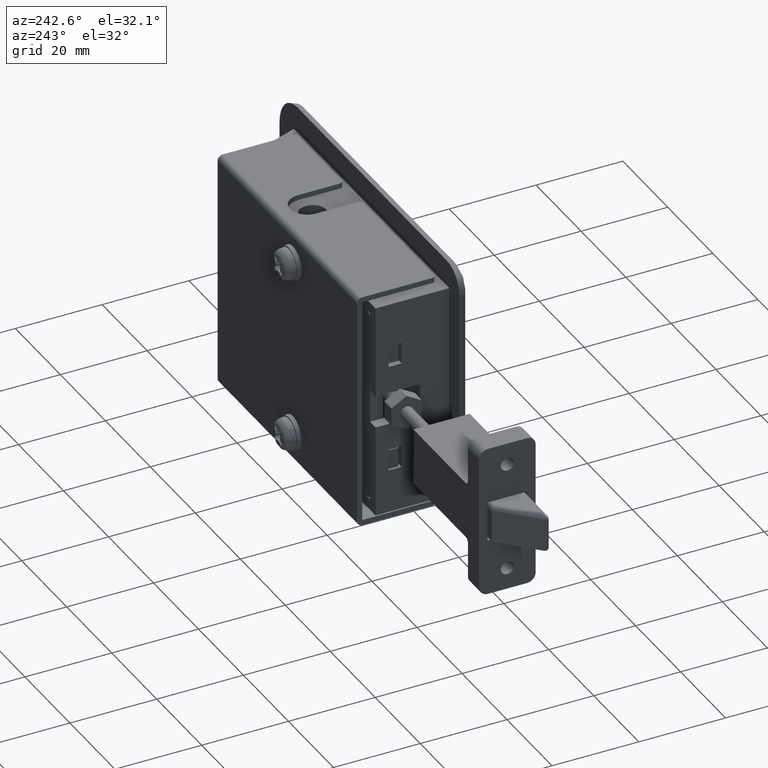
[diagram: clean part render]
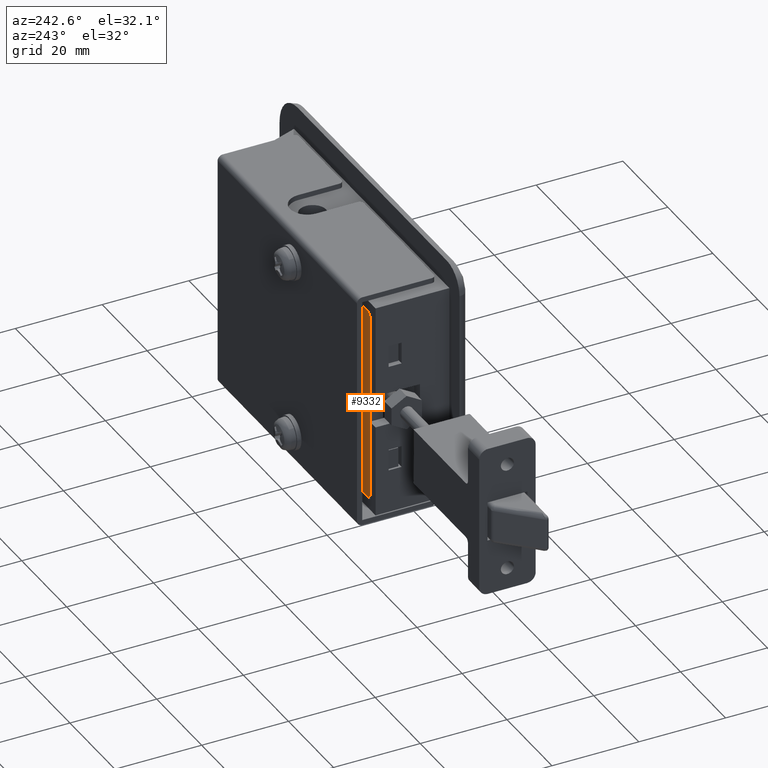
[diagram: same view with one face highlighted and labeled with its STEP entity id]
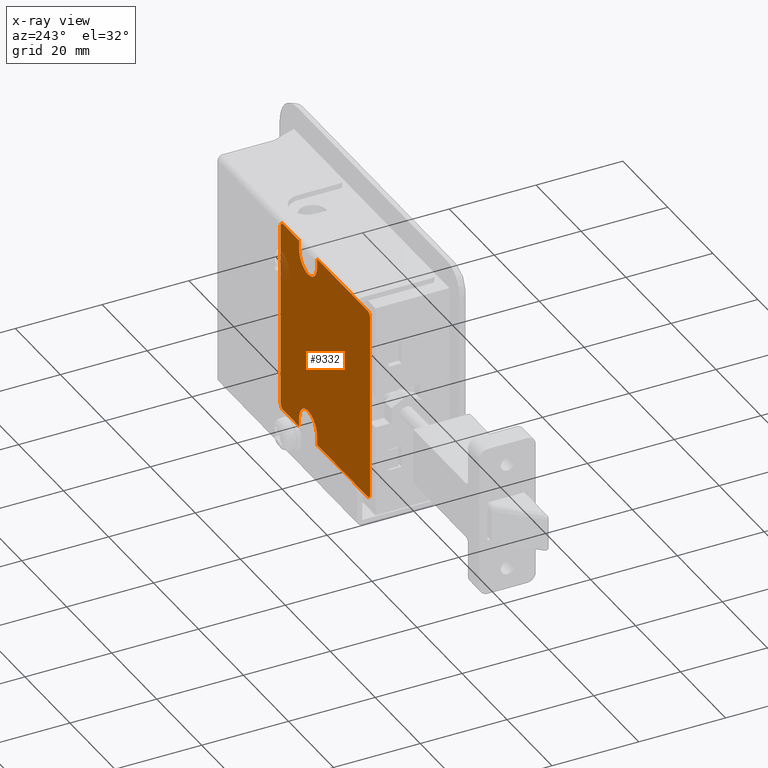
[diagram: x-ray of the same camera — body ghosted, the highlighted face saturated]
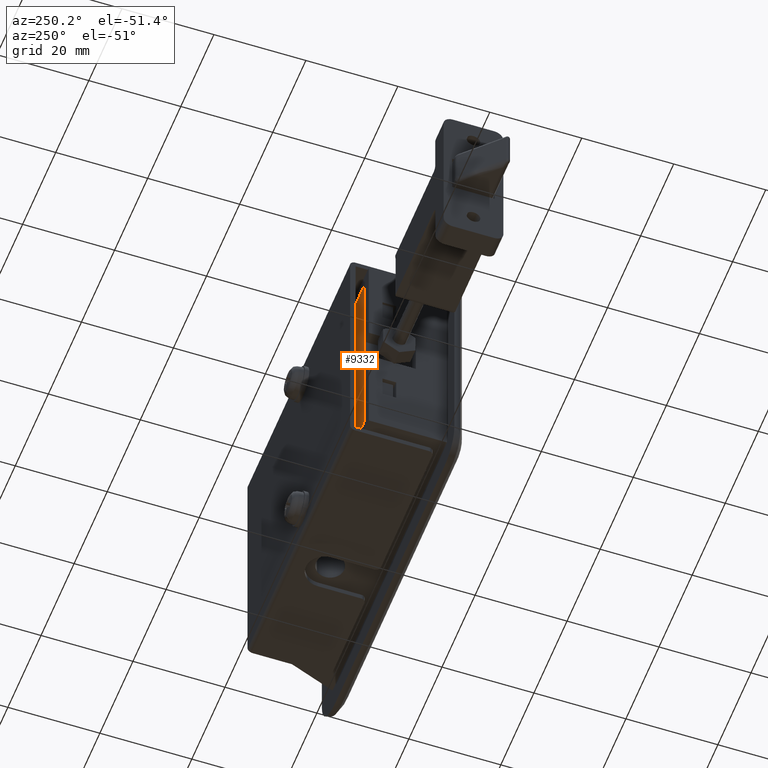
[diagram: same view with one face highlighted and labeled with its STEP entity id]
A machine part, auxiliary view. The second image highlights one B-rep face of the part: STEP entity #9332.
The next image is the same camera in x-ray: the body ghosted, the highlighted face saturated — about 1% of this face is hidden behind the body in this view.
A second angle (auxiliary view) of the same face is appended — the face is thin or edge-on in the first view.
In plain terms, the highlighted face is a freeform B-spline surface patch.
Its self-contained STEP definition (entity closure, byte-faithful):
#8280=CARTESIAN_POINT('',(16.500000000000000,13.750000000000000,20.500000000000000));
#8281=VERTEX_POINT('',#8280);
#8282=CARTESIAN_POINT('',(16.500000000000000,13.750000000000000,22.449999999999999));
#8283=VERTEX_POINT('',#8282);
#8284=CARTESIAN_POINT('',(16.500000000000000,13.750000000000000,20.500000000000000));
#8285=CARTESIAN_POINT('',(16.500000000000000,13.750000000000000,22.449999999999999));
#8286=QUASI_UNIFORM_CURVE('',1,(#8284,#8285),.UNSPECIFIED.,.F.,.U.);
#8287=EDGE_CURVE('',#8281,#8283,#8286,.T.);
#8329=CARTESIAN_POINT('',(24.500000000000000,13.750000000000000,20.500000000000000));
#8330=VERTEX_POINT('',#8329);
#8331=CARTESIAN_POINT('',(20.500000236385361,13.750000000000000,16.500000000000011));
#8332=VERTEX_POINT('',#8331);
#8333=CARTESIAN_POINT('',(24.500000000000000,13.750000000000000,20.500000000000000));
#8334=CARTESIAN_POINT('',(24.500921379876480,13.750000000000011,19.910774770877701));
#8335=CARTESIAN_POINT('',(24.286405906134021,13.749999999999989,18.962578156058139));
#8336=CARTESIAN_POINT('',(23.619832402668770,13.750000000000000,17.938497568508851));
#8337=CARTESIAN_POINT('',(22.857833962097171,13.749999999999989,17.212759140208330));
#8338=CARTESIAN_POINT('',(21.841590634235541,13.750000000000011,16.653463457895171));
#8339=CARTESIAN_POINT('',(20.958181826592551,13.750000000000020,16.499700374151370));
#8340=CARTESIAN_POINT('',(20.500000236385361,13.750000000000000,16.500000000000011));
#8341=B_SPLINE_CURVE_WITH_KNOTS('',3,(#8333,#8334,#8335,#8336,#8337,#8338,#8339,#8340),.UNSPECIFIED.,.F.,.U.,(4,1,1,1,1,4),(0.000000762668861,1.767200709791863,2.847143509533508,3.632475153519214,4.908871750445750,6.283342844253820),.UNSPECIFIED.);
#8342=EDGE_CURVE('',#8330,#8332,#8341,.T.);
#8344=CARTESIAN_POINT('',(20.500000236385361,13.750000000000000,16.500000000000011));
#8345=CARTESIAN_POINT('',(19.845314758766140,13.750000000000011,16.498779887935410));
#8346=CARTESIAN_POINT('',(18.701075226974250,13.750000000000011,16.787461324238691));
#8347=CARTESIAN_POINT('',(17.506043976024770,13.749999999999970,17.744498464292281));
#8348=CARTESIAN_POINT('',(16.713708441087800,13.750000000000030,18.962702487354719));
#8349=CARTESIAN_POINT('',(16.499041143794202,13.749999999999989,19.910735444061132));
#8350=CARTESIAN_POINT('',(16.500000000000000,13.750000000000000,20.500000000000000));
#8351=B_SPLINE_CURVE_WITH_KNOTS('',3,(#8344,#8345,#8346,#8347,#8348,#8349,#8350),.UNSPECIFIED.,.F.,.U.,(4,1,1,1,4),(0.000000762347808,1.963558906145554,3.436200243067706,4.516143088718932,6.283343110721847),.UNSPECIFIED.);
#8352=EDGE_CURVE('',#8332,#8281,#8351,.T.);
#8393=CARTESIAN_POINT('',(24.500000000000000,13.750000000000000,22.449999999999999));
#8394=VERTEX_POINT('',#8393);
#8395=CARTESIAN_POINT('',(24.500000000000000,13.750000000000000,22.449999999999999));
#8396=CARTESIAN_POINT('',(24.500000000000000,13.750000000000000,20.500000000000000));
#8397=QUASI_UNIFORM_CURVE('',1,(#8395,#8396),.UNSPECIFIED.,.F.,.U.);
#8398=EDGE_CURVE('',#8394,#8330,#8397,.T.);
#8421=CARTESIAN_POINT('',(16.500000000000000,13.750000000000000,-20.500000000000000));
#8422=VERTEX_POINT('',#8421);
#8423=CARTESIAN_POINT('',(16.500000000000000,13.750000000000000,-22.449999999999999));
#8424=VERTEX_POINT('',#8423);
#8425=CARTESIAN_POINT('',(16.500000000000000,13.750000000000000,-20.500000000000000));
#8426=CARTESIAN_POINT('',(16.500000000000000,13.750000000000000,-22.449999999999999));
#8427=QUASI_UNIFORM_CURVE('',1,(#8425,#8426),.UNSPECIFIED.,.F.,.U.);
#8428=EDGE_CURVE('',#8422,#8424,#8427,.T.);
#8470=CARTESIAN_POINT('',(20.500000236385361,13.750000000000000,-16.500000000000011));
#8471=VERTEX_POINT('',#8470);
#8472=CARTESIAN_POINT('',(20.500000236385361,13.750000000000000,-16.500000000000011));
#8473=CARTESIAN_POINT('',(19.845314758766140,13.750000000000011,-16.498779887935410));
#8474=CARTESIAN_POINT('',(18.701075226974250,13.750000000000011,-16.787461324238691));
#8475=CARTESIAN_POINT('',(17.506043976024770,13.749999999999970,-17.744498464292281));
#8476=CARTESIAN_POINT('',(16.713708441087800,13.750000000000030,-18.962702487354719));
#8477=CARTESIAN_POINT('',(16.499041143794202,13.749999999999989,-19.910735444061132));
#8478=CARTESIAN_POINT('',(16.500000000000000,13.750000000000000,-20.500000000000000));
#8479=B_SPLINE_CURVE_WITH_KNOTS('',3,(#8472,#8473,#8474,#8475,#8476,#8477,#8478),.UNSPECIFIED.,.F.,.U.,(4,1,1,1,4),(0.000000762347808,1.963558906145554,3.436200243067706,4.516143088718932,6.283343110721847),.UNSPECIFIED.);
#8480=EDGE_CURVE('',#8471,#8422,#8479,.T.);
#8482=CARTESIAN_POINT('',(24.500000000000000,13.750000000000000,-20.500000000000000));
#8483=VERTEX_POINT('',#8482);
#8484=CARTESIAN_POINT('',(24.500000000000000,13.750000000000000,-20.500000000000000));
#8485=CARTESIAN_POINT('',(24.500921379876480,13.750000000000011,-19.910774770877701));
#8486=CARTESIAN_POINT('',(24.286405906134021,13.749999999999989,-18.962578156058139));
#8487=CARTESIAN_POINT('',(23.619832402668770,13.750000000000000,-17.938497568508851));
#8488=CARTESIAN_POINT('',(22.857833962097171,13.749999999999989,-17.212759140208330));
#8489=CARTESIAN_POINT('',(21.841590634235541,13.750000000000011,-16.653463457895171));
#8490=CARTESIAN_POINT('',(20.958181826592551,13.750000000000020,-16.499700374151370));
#8491=CARTESIAN_POINT('',(20.500000236385361,13.750000000000000,-16.500000000000011));
#8492=B_SPLINE_CURVE_WITH_KNOTS('',3,(#8484,#8485,#8486,#8487,#8488,#8489,#8490,#8491),.UNSPECIFIED.,.F.,.U.,(4,1,1,1,1,4),(0.000000762668861,1.767200709791863,2.847143509533508,3.632475153519214,4.908871750445750,6.283342844253820),.UNSPECIFIED.);
#8493=EDGE_CURVE('',#8483,#8471,#8492,.T.);
#8534=CARTESIAN_POINT('',(24.500000000000000,13.750000000000000,-22.449999999999999));
#8535=VERTEX_POINT('',#8534);
#8536=CARTESIAN_POINT('',(24.500000000000000,13.750000000000000,-22.449999999999999));
#8537=CARTESIAN_POINT('',(24.500000000000000,13.750000000000000,-20.500000000000000));
#8538=QUASI_UNIFORM_CURVE('',1,(#8536,#8537),.UNSPECIFIED.,.F.,.U.);
#8539=EDGE_CURVE('',#8535,#8483,#8538,.T.);
#8585=CARTESIAN_POINT('',(-7.000000000000091,13.750000000000000,-21.449999999999999));
#8586=VERTEX_POINT('',#8585);
#8592=CARTESIAN_POINT('',(-6.000000000000091,13.750000000000000,-22.449999999999999));
#8593=VERTEX_POINT('',#8592);
#8594=CARTESIAN_POINT('',(-6.000000000000091,13.750000000000000,-22.449999999999999));
#8595=CARTESIAN_POINT('',(-6.130898262025620,13.750000000000000,-22.450106418773998));
#8596=CARTESIAN_POINT('',(-6.409025399004545,13.750000000000011,-22.394684101508339));
#8597=CARTESIAN_POINT('',(-6.710511718033049,13.749999999999989,-22.182432098111860));
#8598=CARTESIAN_POINT('',(-6.938379712367796,13.750000000000030,-21.858801368497542));
#8599=CARTESIAN_POINT('',(-7.000313996562346,13.749999999999970,-21.613703919837612));
#8600=CARTESIAN_POINT('',(-7.000000000000091,13.750000000000000,-21.449999999999999));
#8601=B_SPLINE_CURVE_WITH_KNOTS('',3,(#8594,#8595,#8596,#8597,#8598,#8599,#8600),.UNSPECIFIED.,.F.,.U.,(4,1,1,1,4),(0.000001361274889,0.392739491890054,0.834477630430808,1.080017906730221,1.570953883735332),.UNSPECIFIED.);
#8602=EDGE_CURVE('',#8593,#8586,#8601,.T.);
#8626=CARTESIAN_POINT('',(-7.000000000000091,13.750000000000000,21.449999999999999));
#8627=VERTEX_POINT('',#8626);
#8628=CARTESIAN_POINT('',(-6.000000000000091,13.750000000000000,22.449999999999999));
#8629=VERTEX_POINT('',#8628);
#8630=CARTESIAN_POINT('',(-7.000000000000091,13.750000000000000,21.449999999999999));
#8631=CARTESIAN_POINT('',(-7.000486271369894,13.750000000000000,21.630109679458808));
#8632=CARTESIAN_POINT('',(-6.913715233397139,13.750000000000050,21.940408518986889));
#8633=CARTESIAN_POINT('',(-6.555211400724606,13.749999999999931,22.336064055006819));
#8634=CARTESIAN_POINT('',(-6.213027154305935,13.750000000000080,22.451005789366182));
#8635=CARTESIAN_POINT('',(-6.000000000000091,13.750000000000000,22.449999999999999));
#8636=B_SPLINE_CURVE_WITH_KNOTS('',3,(#8630,#8631,#8632,#8633,#8634,#8635),.UNSPECIFIED.,.F.,.U.,(4,1,1,4),(0.000001361273575,0.540063759711569,0.932730097958024,1.570953883735353),.UNSPECIFIED.);
#8637=EDGE_CURVE('',#8627,#8629,#8636,.T.);
#8679=CARTESIAN_POINT('',(32.700000000000003,13.750000000000000,-21.449999999999999));
#8680=VERTEX_POINT('',#8679);
#8681=CARTESIAN_POINT('',(31.699999999999999,13.750000000000000,-22.449999999999999));
#8682=VERTEX_POINT('',#8681);
#8683=CARTESIAN_POINT('',(32.700000000000003,13.750000000000000,-21.449999999999999));
#8684=CARTESIAN_POINT('',(32.700909702310383,13.749999999999989,-21.662982282802350));
#8685=CARTESIAN_POINT('',(32.586133214638977,13.750000000000030,-22.005252130907898));
#8686=CARTESIAN_POINT('',(32.190423047180552,13.749999999999970,-22.363706732617828));
#8687=CARTESIAN_POINT('',(31.880092709584950,13.750000000000041,-22.450487044332242));
#8688=CARTESIAN_POINT('',(31.699999999999999,13.750000000000000,-22.449999999999999));
#8689=B_SPLINE_CURVE_WITH_KNOTS('',3,(#8683,#8684,#8685,#8686,#8687,#8688),.UNSPECIFIED.,.F.,.U.,(4,1,1,4),(0.000001361276436,0.638225147052642,1.030891485298246,1.570953883735319),.UNSPECIFIED.);
#8690=EDGE_CURVE('',#8680,#8682,#8689,.T.);
#8746=CARTESIAN_POINT('',(32.700000000000003,13.750000000000000,21.449999999999999));
#8747=VERTEX_POINT('',#8746);
#8753=CARTESIAN_POINT('',(31.699999999999999,13.750000000000000,22.449999999999999));
#8754=VERTEX_POINT('',#8753);
#8755=CARTESIAN_POINT('',(31.699999999999999,13.750000000000000,22.449999999999999));
#8756=CARTESIAN_POINT('',(31.830929053859428,13.750000000000000,22.450142709308292));
#8757=CARTESIAN_POINT('',(32.076252262380123,13.750000000000000,22.401077544313630));
#8758=CARTESIAN_POINT('',(32.413133507162001,13.750000000000000,22.188001019262920));
#8759=CARTESIAN_POINT('',(32.644695349418477,13.750000000000011,21.859005033064339));
#8760=CARTESIAN_POINT('',(32.700102675364953,13.749999999999970,21.580904480557329));
#8761=CARTESIAN_POINT('',(32.700000000000003,13.750000000000000,21.449999999999999));
#8762=B_SPLINE_CURVE_WITH_KNOTS('',3,(#8755,#8756,#8757,#8758,#8759,#8760,#8761),.UNSPECIFIED.,.F.,.U.,(4,1,1,1,4),(0.000001361276398,0.392739491891071,0.736477614580219,1.178215753120450,1.570953883735302),.UNSPECIFIED.);
#8763=EDGE_CURVE('',#8754,#8747,#8762,.T.);
#9092=CARTESIAN_POINT('',(-7.000000000000091,13.750000000000000,-21.449999999999999));
#9093=CARTESIAN_POINT('',(-7.000000000000091,13.750000000000000,21.449999999999999));
#9094=QUASI_UNIFORM_CURVE('',1,(#9092,#9093),.UNSPECIFIED.,.F.,.U.);
#9095=EDGE_CURVE('',#8586,#8627,#9094,.T.);
#9154=CARTESIAN_POINT('',(32.700000000000003,13.750000000000000,-21.449999999999999));
#9155=CARTESIAN_POINT('',(32.700000000000003,13.750000000000000,21.449999999999999));
#9156=QUASI_UNIFORM_CURVE('',1,(#9154,#9155),.UNSPECIFIED.,.F.,.U.);
#9157=EDGE_CURVE('',#8680,#8747,#9156,.T.);
#9204=CARTESIAN_POINT('',(-6.000000000000091,13.750000000000000,-22.449999999999999));
#9205=CARTESIAN_POINT('',(16.500000000000000,13.750000000000000,-22.449999999999999));
#9206=QUASI_UNIFORM_CURVE('',1,(#9204,#9205),.UNSPECIFIED.,.F.,.U.);
#9207=EDGE_CURVE('',#8593,#8424,#9206,.T.);
#9232=CARTESIAN_POINT('',(24.500000000000000,13.750000000000000,-22.449999999999999));
#9233=CARTESIAN_POINT('',(31.699999999999999,13.750000000000000,-22.449999999999999));
#9234=QUASI_UNIFORM_CURVE('',1,(#9232,#9233),.UNSPECIFIED.,.F.,.U.);
#9235=EDGE_CURVE('',#8535,#8682,#9234,.T.);
#9252=CARTESIAN_POINT('',(16.500000000000000,13.750000000000000,22.449999999999999));
#9253=CARTESIAN_POINT('',(-6.000000000000091,13.750000000000000,22.449999999999999));
#9254=QUASI_UNIFORM_CURVE('',1,(#9252,#9253),.UNSPECIFIED.,.F.,.U.);
#9255=EDGE_CURVE('',#8283,#8629,#9254,.T.);
#9268=CARTESIAN_POINT('',(31.699999999999999,13.750000000000000,22.449999999999999));
#9269=CARTESIAN_POINT('',(24.500000000000000,13.750000000000000,22.449999999999999));
#9270=QUASI_UNIFORM_CURVE('',1,(#9268,#9269),.UNSPECIFIED.,.F.,.U.);
#9271=EDGE_CURVE('',#8754,#8394,#9270,.T.);
#9307=CARTESIAN_POINT('',(-8.983014923053789,13.750000000000000,24.692755755953240));
#9308=CARTESIAN_POINT('',(-8.983014923053789,13.750000000000000,-24.692756157390519));
#9309=CARTESIAN_POINT('',(34.683015987890691,13.750000000000000,24.692755755953240));
#9310=CARTESIAN_POINT('',(34.683015987890691,13.750000000000000,-24.692756157390519));
#9311=B_SPLINE_SURFACE_WITH_KNOTS('',1,1,((#9307,#9309),(#9308,#9310)),.UNSPECIFIED.,.F.,.F.,.U.,(2,2),(2,2),(0.0,49.385511913343763),(0.0,43.666030910944478),.UNSPECIFIED.);
#9312=ORIENTED_EDGE('',*,*,#8398,.F.);
#9313=ORIENTED_EDGE('',*,*,#9271,.F.);
#9314=ORIENTED_EDGE('',*,*,#8763,.T.);
#9315=ORIENTED_EDGE('',*,*,#9157,.F.);
#9316=ORIENTED_EDGE('',*,*,#8690,.T.);
#9317=ORIENTED_EDGE('',*,*,#9235,.F.);
#9318=ORIENTED_EDGE('',*,*,#8539,.T.);
#9319=ORIENTED_EDGE('',*,*,#8493,.T.);
#9320=ORIENTED_EDGE('',*,*,#8480,.T.);
#9321=ORIENTED_EDGE('',*,*,#8428,.T.);
#9322=ORIENTED_EDGE('',*,*,#9207,.F.);
#9323=ORIENTED_EDGE('',*,*,#8602,.T.);
#9324=ORIENTED_EDGE('',*,*,#9095,.T.);
#9325=ORIENTED_EDGE('',*,*,#8637,.T.);
#9326=ORIENTED_EDGE('',*,*,#9255,.F.);
#9327=ORIENTED_EDGE('',*,*,#8287,.F.);
#9328=ORIENTED_EDGE('',*,*,#8352,.F.);
#9329=ORIENTED_EDGE('',*,*,#8342,.F.);
#9330=EDGE_LOOP('',(#9312,#9313,#9314,#9315,#9316,#9317,#9318,#9319,#9320,#9321,#9322,#9323,#9324,#9325,#9326,#9327,#9328,#9329));
#9331=FACE_OUTER_BOUND('',#9330,.T.);
#9332=ADVANCED_FACE('',(#9331),#9311,.F.);